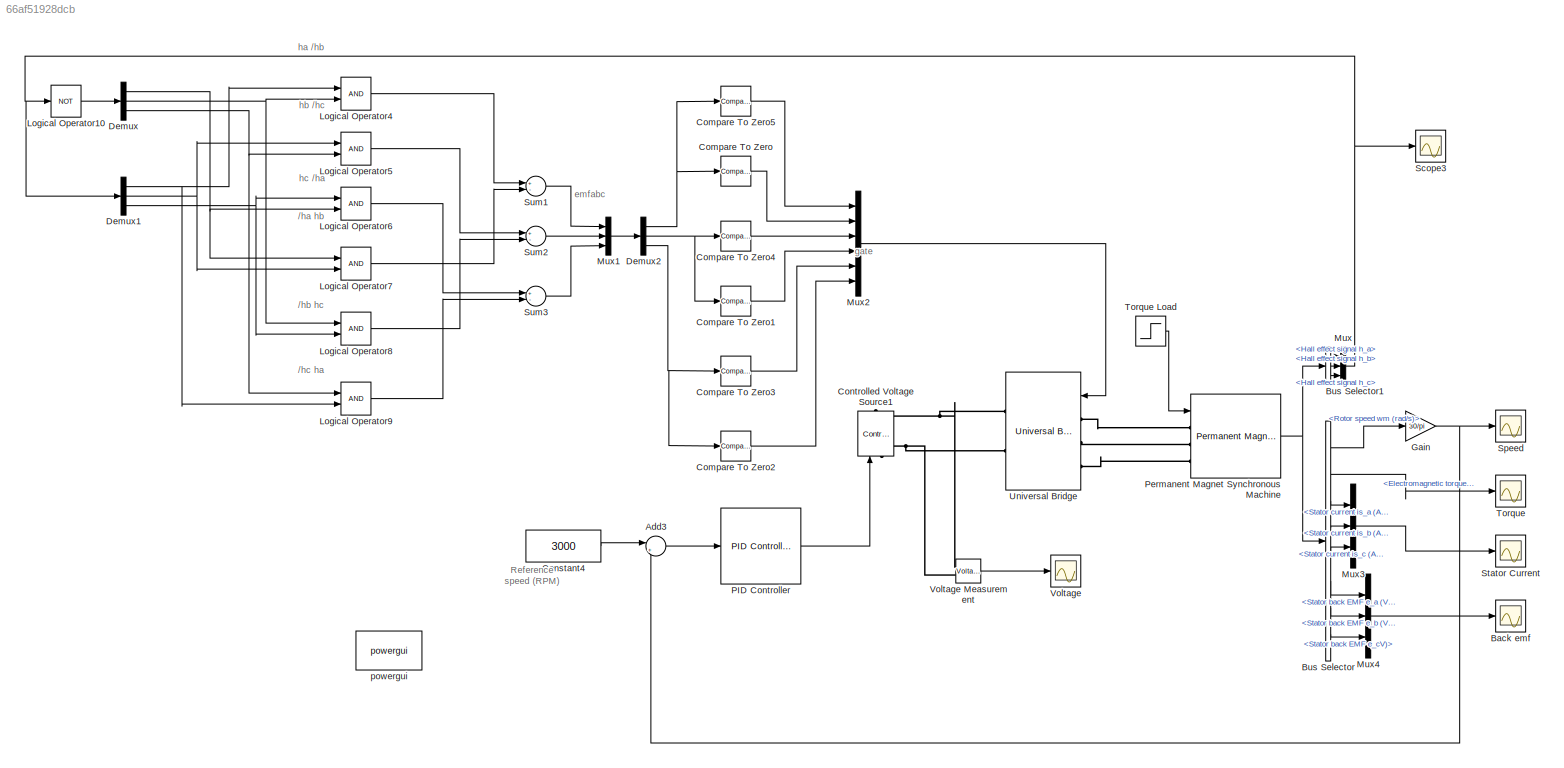
MODEL slx_66af51928dcb
KIND model
CONFIG AbsTol = auto
CONFIG FixedStep = auto
CONFIG MaxStep = auto
CONFIG MinStep = auto
CONFIG RelTol = 1e-3
CONFIG SampleTimeConstraint = Unconstrained
CONFIG Solver = VariableStepAuto
CONFIG SolverMode = Auto
CONFIG SolverName = VariableStepAuto
CONFIG StartTime = 0.0
CONFIG StopTime = 5
BLOCK [Sum] Add3
  IconShape = round
  InputSameDT = off
  Inputs = |+-
  OutDataTypeStr = Inherit: Inherit via internal rule
  Ports = [2, 1]
  SaturateOnIntegerOverflow = off
BLOCK [Scope] Back emf
  Ports = [1]
  ScopeSpecificationString = Simulink.scopes.TimeScopeBlockCfg('CurrentConfiguration', extmgr.ConfigurationSet(extmgr.Configuration('Core','General UI',true),extmgr.Configuration('Core','Source UI',true),extmgr.Configuration('Sources','WiredSimulink',true,'DataLoggingVariableName','ScopeData3'),extmgr.Configuration('Visuals','Time Domain',true,'SerializedDisplays',{struct('MinYLimReal','-11.18735','MaxYLimReal','11.18735','YL...<+1515ch>
BLOCK [BusSelector] Bus Selector
  OutputSignals = Rotor speed wm (rad/s),Electromagnetic torque Te (N*m),Stator current is_a (A),Stator current is_b (A),Stator current is_c (A),Stator back EMF e_a (V),Stator back EMF e_b (V),Stator back EMF e_cV)
  Ports = [1, 8]
BLOCK [BusSelector] Bus Selector1
  OutputSignals = Hall effect signal h_a,Hall effect signal h_b,Hall effect signal h_c
  Ports = [1, 3]
BLOCK [Reference] Compare To Zero  REF=simulink/Logic and Bit
Operations/Compare
To Zero
  Ports = [1, 1]
  SourceBlock = simulink/Logic and Bit\nOperations/Compare\nTo Zero
  SourceType = Compare To Zero
BLOCK [Reference] Compare To Zero1  REF=simulink/Logic and Bit
Operations/Compare
To Zero
  Ports = [1, 1]
  SourceBlock = simulink/Logic and Bit\nOperations/Compare\nTo Zero
  SourceType = Compare To Zero
BLOCK [Reference] Compare To Zero2  REF=simulink/Logic and Bit
Operations/Compare
To Zero
  Ports = [1, 1]
  SourceBlock = simulink/Logic and Bit\nOperations/Compare\nTo Zero
  SourceType = Compare To Zero
BLOCK [Reference] Compare To Zero3  REF=simulink/Logic and Bit
Operations/Compare
To Zero
  Ports = [1, 1]
  SourceBlock = simulink/Logic and Bit\nOperations/Compare\nTo Zero
  SourceType = Compare To Zero
BLOCK [Reference] Compare To Zero4  REF=simulink/Logic and Bit
Operations/Compare
To Zero
  Ports = [1, 1]
  SourceBlock = simulink/Logic and Bit\nOperations/Compare\nTo Zero
  SourceType = Compare To Zero
BLOCK [Reference] Compare To Zero5  REF=simulink/Logic and Bit
Operations/Compare
To Zero
  Ports = [1, 1]
  SourceBlock = simulink/Logic and Bit\nOperations/Compare\nTo Zero
  SourceType = Compare To Zero
BLOCK [Constant] Constant4
  Value = 3000
BLOCK [Reference] Controlled Voltage Source1  REF=powerlib/Electrical
Sources/Controlled Voltage Source
  Ports = [1, 0, 0, 0, 0, 1, 1]
  SourceBlock = powerlib/Electrical\nSources/Controlled Voltage Source
  SourceType = Controlled Voltage Source
BLOCK [Demux] Demux
  DisplayOption = bar
  Outputs = 3
  Ports = [1, 3]
BLOCK [Demux] Demux1
  DisplayOption = bar
  Outputs = 3
  Ports = [1, 3]
BLOCK [Demux] Demux2
  DisplayOption = bar
  Outputs = 3
  Ports = [1, 3]
BLOCK [Gain] Gain
  Gain = 30/pi
  OutDataTypeStr = Inherit: Inherit via internal rule
  ParamDataTypeStr = Inherit: Inherit via internal rule
  SaturateOnIntegerOverflow = off
BLOCK [Logic] Logical Operator10
  AllPortsSameDT = off
  Operator = NOT
  OutDataTypeStr = boolean
  Ports = [1, 1]
BLOCK [Logic] Logical Operator4
  AllPortsSameDT = off
  OutDataTypeStr = boolean
  Ports = [2, 1]
BLOCK [Logic] Logical Operator5
  AllPortsSameDT = off
  OutDataTypeStr = boolean
  Ports = [2, 1]
BLOCK [Logic] Logical Operator6
  AllPortsSameDT = off
  OutDataTypeStr = boolean
  Ports = [2, 1]
BLOCK [Logic] Logical Operator7
  AllPortsSameDT = off
  OutDataTypeStr = boolean
  Ports = [2, 1]
BLOCK [Logic] Logical Operator8
  AllPortsSameDT = off
  OutDataTypeStr = boolean
  Ports = [2, 1]
BLOCK [Logic] Logical Operator9
  AllPortsSameDT = off
  OutDataTypeStr = boolean
  Ports = [2, 1]
BLOCK [Mux] Mux
  DisplayOption = bar
  Inputs = 3
  Ports = [3, 1]
BLOCK [Mux] Mux1
  DisplayOption = bar
  Inputs = 3
  Ports = [3, 1]
BLOCK [Mux] Mux2
  DisplayOption = bar
  Inputs = 6
  Ports = [6, 1]
BLOCK [Mux] Mux3
  DisplayOption = bar
  Inputs = 3
  Ports = [3, 1]
BLOCK [Mux] Mux4
  DisplayOption = bar
  Inputs = 3
  Ports = [3, 1]
BLOCK [Reference] PID Controller  REF=simulink/Continuous/PID Controller
  Ports = [1, 1]
  SourceBlock = simulink/Continuous/PID Controller
  SourceType = PID 1dof
BLOCK [Reference] Permanent Magnet Synchronous Machine  REF=powerlib/Machines/Permanent Magnet
Synchronous Machine
  Ports = [1, 1, 0, 0, 0, 3]
  SourceBlock = powerlib/Machines/Permanent Magnet\nSynchronous Machine
  SourceType = Permanent Magnet Synchronous Machine
BLOCK [Scope] Scope3
  Ports = [1]
  ScopeSpecificationString = Simulink.scopes.TimeScopeBlockCfg('CurrentConfiguration', extmgr.ConfigurationSet(extmgr.Configuration('Core','General UI',true),extmgr.Configuration('Core','Source UI',true),extmgr.Configuration('Sources','WiredSimulink',true,'DataLoggingVariableName','ScopeData2'),extmgr.Configuration('Visuals','Time Domain',true,'SerializedDisplays',{struct('MinYLimReal','-0.125','MaxYLimReal','1.125','YLabelRe...<+1496ch>
BLOCK [Scope] Speed
  Ports = [1]
  ScopeSpecificationString = Simulink.scopes.TimeScopeBlockCfg('CurrentConfiguration', extmgr.ConfigurationSet(extmgr.Configuration('Core','General UI',true),extmgr.Configuration('Core','Source UI',true),extmgr.Configuration('Sources','WiredSimulink',true),extmgr.Configuration('Visuals','Time Domain',true,'SerializedDisplays',{struct('MinYLimReal','-374.77788','MaxYLimReal','3373.00096','YLabelReal','','MinYLimMag',' 0.00000'...<+1413ch>
BLOCK [Scope] Stator Current
  Ports = [1]
  ScopeSpecificationString = Simulink.scopes.TimeScopeBlockCfg('CurrentConfiguration', extmgr.ConfigurationSet(extmgr.Configuration('Core','General UI',true),extmgr.Configuration('Core','Source UI',true),extmgr.Configuration('Sources','WiredSimulink',true,'DataLoggingVariableName','ScopeData1'),extmgr.Configuration('Visuals','Time Domain',true,'SerializedDisplays',{struct('MinYLimReal','-345.83405','MaxYLimReal','451.48865','...<+1525ch>
BLOCK [Sum] Sum1
  InputSameDT = off
  Inputs = +-
  OutDataTypeStr = double
  Ports = [2, 1]
  SaturateOnIntegerOverflow = off
BLOCK [Sum] Sum2
  InputSameDT = off
  Inputs = +-
  OutDataTypeStr = double
  Ports = [2, 1]
  SaturateOnIntegerOverflow = off
BLOCK [Sum] Sum3
  InputSameDT = off
  Inputs = +-
  OutDataTypeStr = double
  Ports = [2, 1]
  SaturateOnIntegerOverflow = off
BLOCK [Scope] Torque
  Ports = [1]
  ScopeSpecificationString = Simulink.scopes.TimeScopeBlockCfg('CurrentConfiguration', extmgr.ConfigurationSet(extmgr.Configuration('Core','General UI',true),extmgr.Configuration('Core','Source UI',true),extmgr.Configuration('Sources','WiredSimulink',true,'DataLoggingVariableName','ScopeData1'),extmgr.Configuration('Visuals','Time Domain',true,'SerializedDisplays',{struct('MinYLimReal','-6.96252','MaxYLimReal','62.66267','YLa...<+1467ch>
BLOCK [Step] Torque Load
  After = 5
  SampleTime = 0
  Time = 2.5
BLOCK [Reference] Universal Bridge  REF=powerlib/Power
Electronics/Universal Bridge
  Ports = [1, 0, 0, 0, 0, 3, 2]
  SourceBlock = powerlib/Power\nElectronics/Universal Bridge
  SourceType = Universal Bridge
BLOCK [Scope] Voltage
  Ports = [1]
  ScopeSpecificationString = Simulink.scopes.TimeScopeBlockCfg('CurrentConfiguration', extmgr.ConfigurationSet(extmgr.Configuration('Core','General UI',true),extmgr.Configuration('Core','Source UI',true),extmgr.Configuration('Sources','WiredSimulink',true,'DataLoggingVariableName','ScopeData1'),extmgr.Configuration('Visuals','Time Domain',true,'SerializedDisplays',{struct('MinYLimReal','-374.77788','MaxYLimReal','3373.00096',...<+1467ch>
BLOCK [Reference] Voltage Measurement  REF=powerlib/Measurements/Voltage Measurement
  Ports = [0, 1, 0, 0, 0, 2]
  SourceBlock = powerlib/Measurements/Voltage Measurement
  SourceType = Voltage Measurement
  UserDataPersistent = on
BLOCK [Reference] powergui  REF=powerlib/powergui
  Ports = []
  Priority = 1
  SourceBlock = powerlib/powergui
  SourceType = PSB option menu block
  UserDataPersistent = on
ANNOTATION (root): /ha hb
ANNOTATION (root): /hb hc
ANNOTATION (root): /hc ha
ANNOTATION (root): Reference speed (RPM)
ANNOTATION (root): emfabc
ANNOTATION (root): gate
ANNOTATION (root): ha /hb
ANNOTATION (root): hb /hc
ANNOTATION (root): hc /ha
LINE Add3:1 -> PID Controller:1
LINE Bus Selector1:1 -> Mux:1
LINE Bus Selector1:2 -> Mux:2
LINE Bus Selector1:3 -> Mux:3
LINE Bus Selector:1 -> Gain:1
LINE Bus Selector:2 -> Torque:1
LINE Bus Selector:3 -> Mux3:1
LINE Bus Selector:4 -> Mux3:2
LINE Bus Selector:5 -> Mux3:3
LINE Bus Selector:6 -> Mux4:1
LINE Bus Selector:7 -> Mux4:2
LINE Bus Selector:8 -> Mux4:3
LINE Compare To Zero1:1 -> Mux2:4
LINE Compare To Zero2:1 -> Mux2:6
LINE Compare To Zero3:1 -> Mux2:5
LINE Compare To Zero4:1 -> Mux2:3
LINE Compare To Zero5:1 -> Mux2:1
LINE Compare To Zero:1 -> Mux2:2
LINE Constant4:1 -> Add3:1
NET Demux1:1 -> Logical Operator4:1, Logical Operator9:2
NET Demux1:2 -> Logical Operator5:1, Logical Operator7:2
NET Demux1:3 -> Logical Operator6:1, Logical Operator8:2
NET Demux2:1 -> Compare To Zero5:1, Compare To Zero:1
NET Demux2:2 -> Compare To Zero1:1, Compare To Zero4:1
NET Demux2:3 -> Compare To Zero2:1, Compare To Zero3:1
NET Demux:1 -> Logical Operator6:2, Logical Operator7:1
NET Demux:2 -> Logical Operator4:2, Logical Operator8:1
NET Demux:3 -> Logical Operator5:2, Logical Operator9:1
NET Gain:1 -> Add3:2, Speed:1
LINE Logical Operator10:1 -> Demux:1
LINE Logical Operator4:1 -> Sum1:1
LINE Logical Operator5:1 -> Sum2:1
LINE Logical Operator6:1 -> Sum3:1
LINE Logical Operator7:1 -> Sum1:2
LINE Logical Operator8:1 -> Sum2:2
LINE Logical Operator9:1 -> Sum3:2
LINE Mux1:1 -> Demux2:1
LINE Mux2:1 -> Universal Bridge:1
LINE Mux3:1 -> Stator Current:1
LINE Mux4:1 -> Back emf:1
NET Mux:1 -> Demux1:1, Logical Operator10:1, Scope3:1
LINE PID Controller:1 -> Controlled Voltage Source1:1
NET Permanent Magnet Synchronous Machine:1 -> Bus Selector1:1, Bus Selector:1
LINE Sum1:1 -> Mux1:1
LINE Sum2:1 -> Mux1:2
LINE Sum3:1 -> Mux1:3
LINE Torque Load:1 -> Permanent Magnet Synchronous Machine:1
LINE Voltage Measurement:1 -> Voltage:1
PNET net1: Controlled Voltage Source1:LConn1 -- Universal Bridge:RConn2 -- Voltage Measurement:LConn2
PNET net2: Controlled Voltage Source1:RConn1 -- Universal Bridge:RConn1 -- Voltage Measurement:LConn1
PLINE Permanent Magnet Synchronous Machine:LConn1 -- Universal Bridge:LConn1
PLINE Permanent Magnet Synchronous Machine:LConn2 -- Universal Bridge:LConn2
PLINE Permanent Magnet Synchronous Machine:LConn3 -- Universal Bridge:LConn3
note: NET lines group one-source signal fan-out (src -> all destinations, sorted); 1:1 wires keep LINE; PNET lines group multi-terminal physical nets as a canonical sorted terminal list (undirected conserving connections); 2-terminal nets keep the pairwise PLINE form
